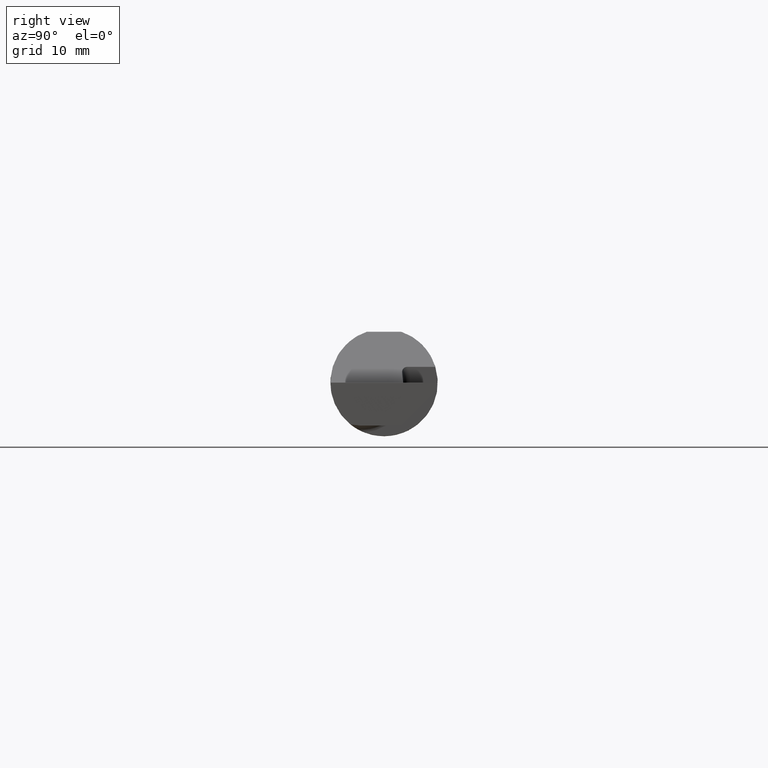
[diagram: clean part render]
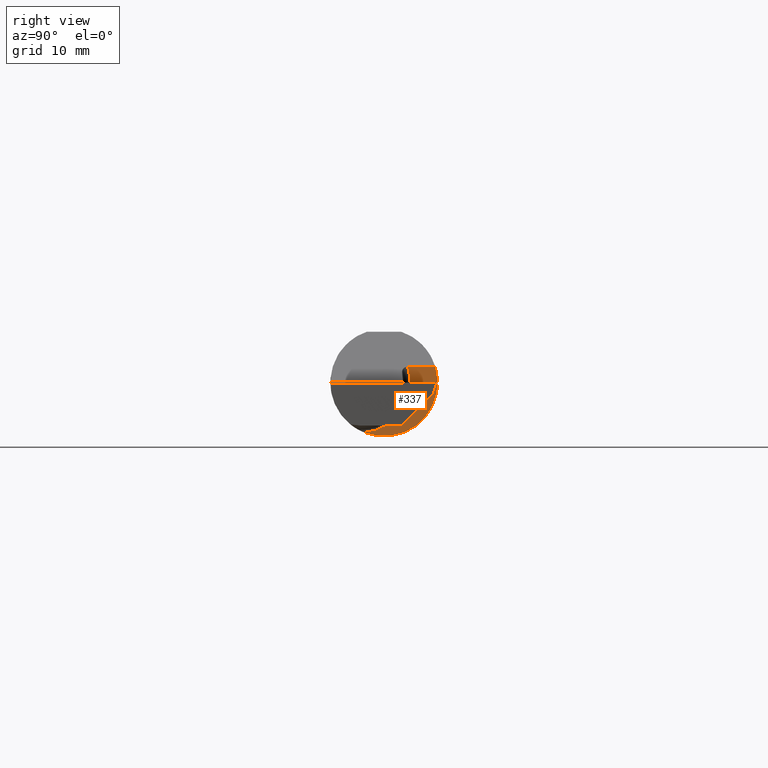
[diagram: same view with one face highlighted and labeled with its STEP entity id]
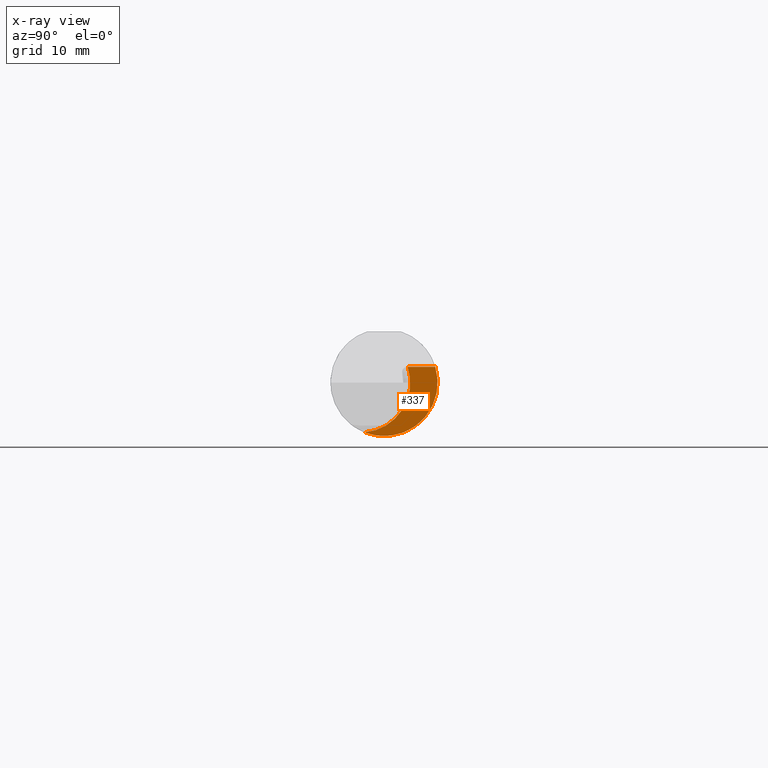
[diagram: x-ray of the same camera — body ghosted, the highlighted face saturated]
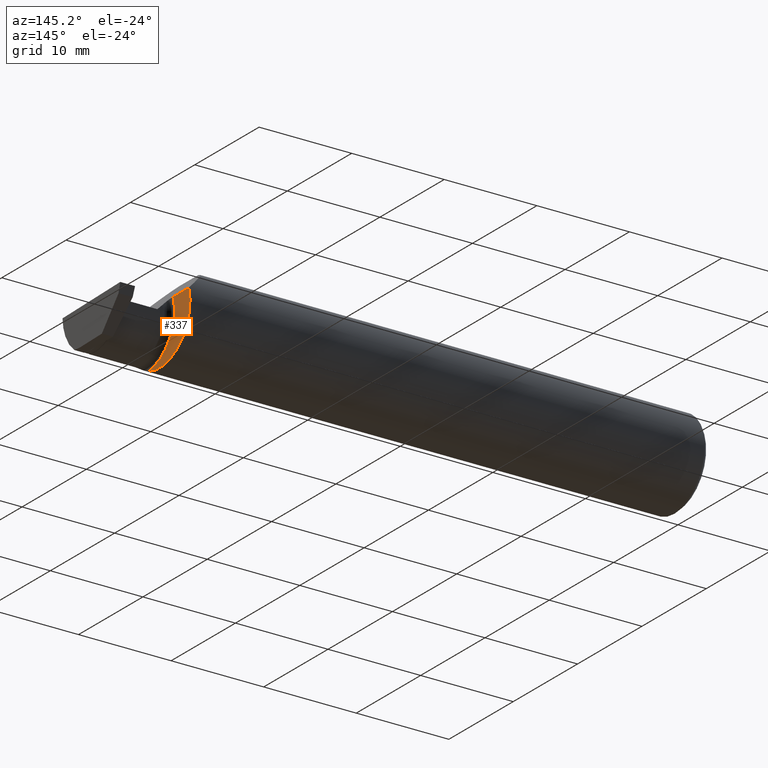
[diagram: same view with one face highlighted and labeled with its STEP entity id]
A machine part, right view. The second image highlights one B-rep face of the part: STEP entity #337.
The next image is the same camera in x-ray: the body ghosted, the highlighted face saturated — about 0% of this face is hidden behind the body in this view.
A second angle (auxiliary view) of the same face is appended — the face is thin or edge-on in the first view.
In plain terms, the highlighted planar face has unit normal (1, 0, 0).
Its self-contained STEP definition (entity closure, byte-faithful):
#2 = VERTEX_POINT ( 'NONE', #144 ) ;
#41 = ORIENTED_EDGE ( 'NONE', *, *, #907, .T. ) ;
#75 = DIRECTION ( 'NONE',  ( 0.000000000000000000, 0.000000000000000000, -1.000000000000000000 ) ) ;
#129 = DIRECTION ( 'NONE',  ( 1.000000000000000000, 0.000000000000000000, 0.000000000000000000 ) ) ;
#144 = CARTESIAN_POINT ( 'NONE',  ( 2.205000000000000071, -0.06851976604679065053, -0.1743704796142198643 ) ) ;
#149 = PLANE ( 'NONE',  #764 ) ;
#166 = ORIENTED_EDGE ( 'NONE', *, *, #631, .T. ) ;
#215 = CARTESIAN_POINT ( 'NONE',  ( 2.205000000000000071, -0.08334999999999996578, 0.000000000000000000 ) ) ;
#216 = ORIENTED_EDGE ( 'NONE', *, *, #282, .T. ) ;
#221 = CIRCLE ( 'NONE', #792, 0.1873499999999999888 ) ;
#282 = EDGE_CURVE ( 'NONE', #2, #349, #221, .T. ) ;
#298 = DIRECTION ( 'NONE',  ( -1.000000000000000000, -0.000000000000000000, -0.000000000000000000 ) ) ;
#300 = CARTESIAN_POINT ( 'NONE',  ( 2.205000000000000071, 0.2666500000000000536, 0.000000000000000000 ) ) ;
#337 = ADVANCED_FACE ( 'NONE', ( #924 ), #149, .T. ) ;
#349 = VERTEX_POINT ( 'NONE', #660 ) ;
#368 = CARTESIAN_POINT ( 'NONE',  ( 2.205000000000000071, 0.08278247725836135329, 0.05500000000000044437 ) ) ;
#419 = CARTESIAN_POINT ( 'NONE',  ( 2.205000000000000071, -0.2000000000000000111, 0.05500000000000044437 ) ) ;
#422 = VECTOR ( 'NONE', #846, 39.37007874015748143 ) ;
#437 = AXIS2_PLACEMENT_3D ( 'NONE', #215, #298, #795 ) ;
#448 = DIRECTION ( 'NONE',  ( 1.000000000000000000, 0.000000000000000000, 0.000000000000000000 ) ) ;
#484 = CIRCLE ( 'NONE', #437, 0.1749999999999999889 ) ;
#499 = LINE ( 'NONE', #419, #422 ) ;
#593 = DIRECTION ( 'NONE',  ( 0.000000000000000000, 0.000000000000000000, -1.000000000000000000 ) ) ;
#631 = EDGE_CURVE ( 'NONE', #644, #2, #484, .T. ) ;
#644 = VERTEX_POINT ( 'NONE', #368 ) ;
#660 = CARTESIAN_POINT ( 'NONE',  ( 2.205000000000000071, 0.1790950097015547027, 0.05500000000000044437 ) ) ;
#764 = AXIS2_PLACEMENT_3D ( 'NONE', #300, #448, #75 ) ;
#791 = EDGE_LOOP ( 'NONE', ( #216, #41, #166 ) ) ;
#792 = AXIS2_PLACEMENT_3D ( 'NONE', #797, #129, #593 ) ;
#795 = DIRECTION ( 'NONE',  ( 0.000000000000000000, 0.000000000000000000, 1.000000000000000000 ) ) ;
#797 = CARTESIAN_POINT ( 'NONE',  ( 2.205000000000000071, 0.000000000000000000, 0.000000000000000000 ) ) ;
#846 = DIRECTION ( 'NONE',  ( 0.000000000000000000, -1.000000000000000000, 0.000000000000000000 ) ) ;
#907 = EDGE_CURVE ( 'NONE', #349, #644, #499, .T. ) ;
#924 = FACE_OUTER_BOUND ( 'NONE', #791, .T. ) ;